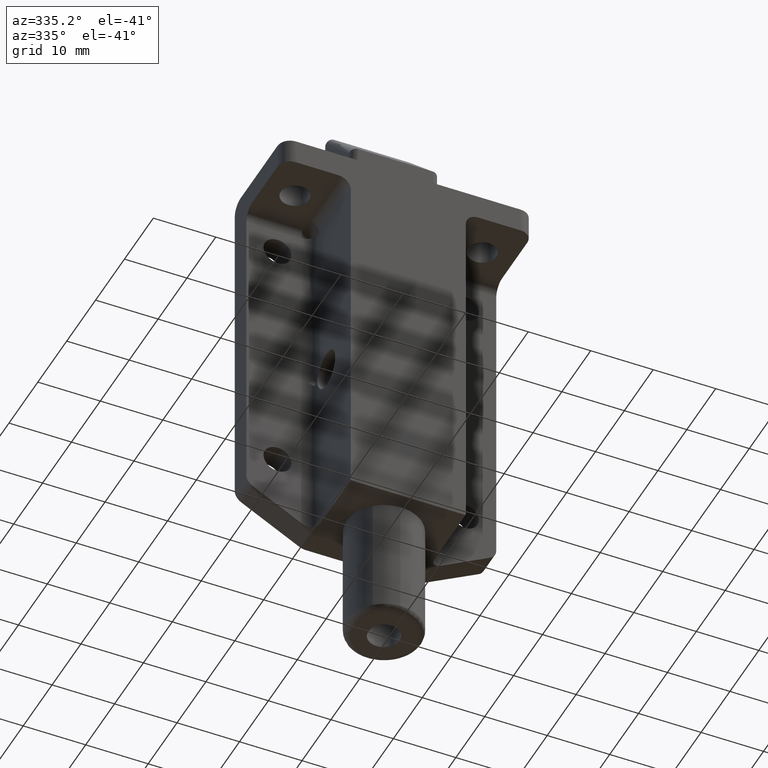
[diagram: clean part render]
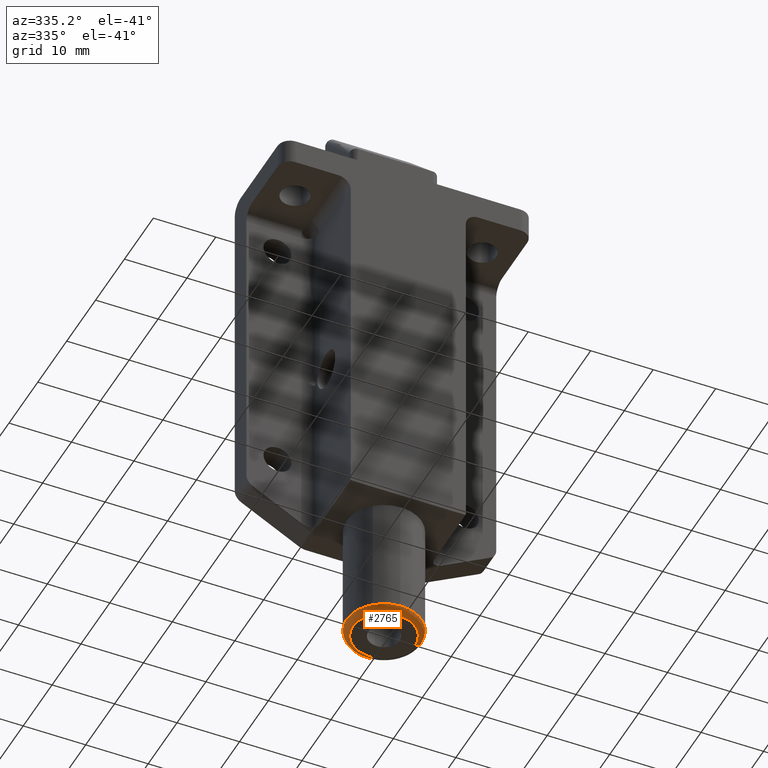
[diagram: same view with one face highlighted and labeled with its STEP entity id]
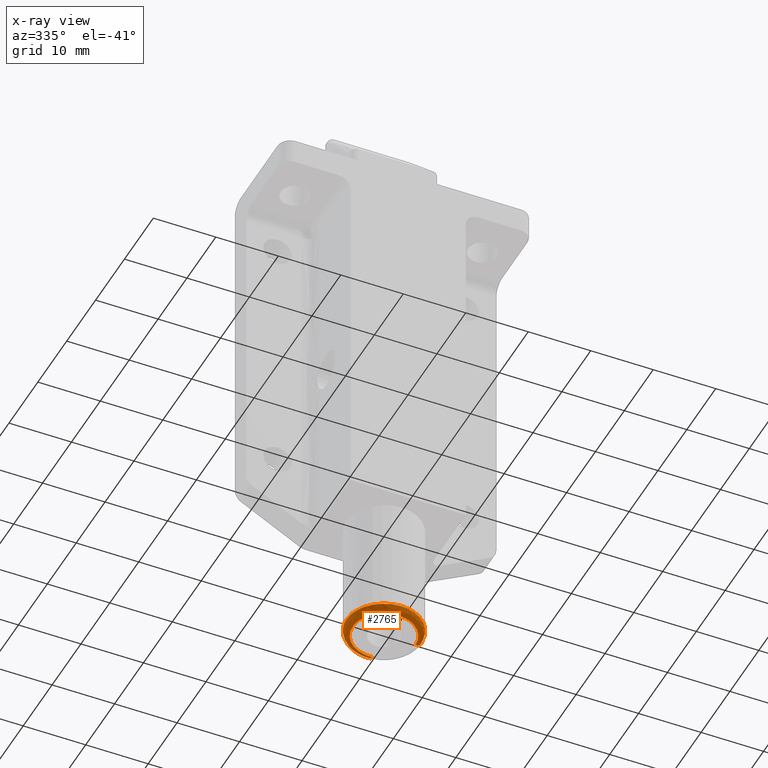
[diagram: x-ray of the same camera — body ghosted, the highlighted face saturated]
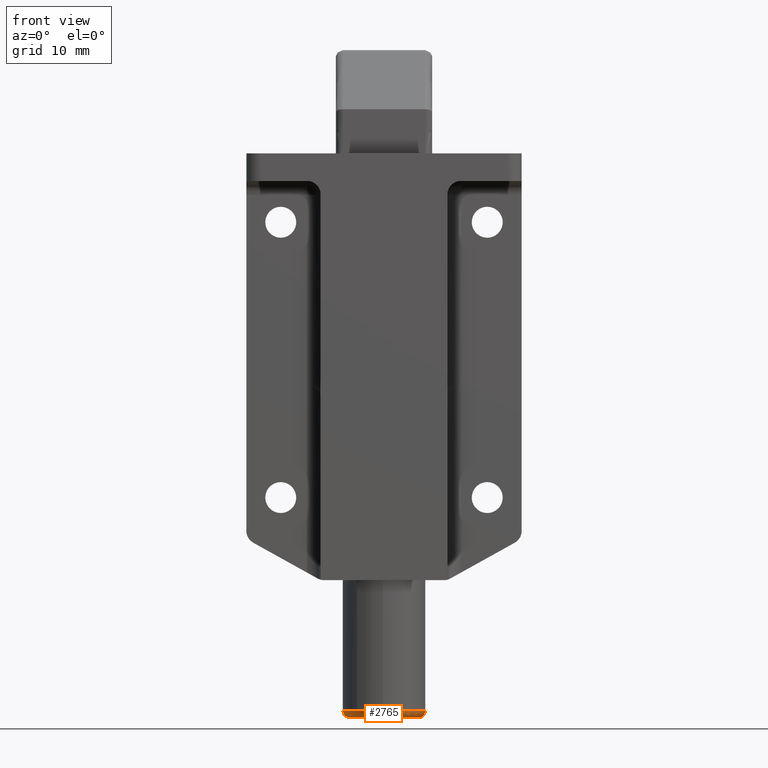
[diagram: same view with one face highlighted and labeled with its STEP entity id]
A machine part, auxiliary view. The second image highlights one B-rep face of the part: STEP entity #2765.
The next image is the same camera in x-ray: the body ghosted, the highlighted face saturated — about 0% of this face is hidden behind the body in this view.
A second angle (front view) of the same face is appended — the face is thin or edge-on in the first view.
In plain terms, the highlighted face is a freeform B-spline surface patch.
Its self-contained STEP definition (entity closure, byte-faithful):
#2535=CARTESIAN_POINT('',(0.157061689912570,14.397943949851630,-80.999999999999986));
#2536=VERTEX_POINT('',#2535);
#2542=CARTESIAN_POINT('',(-5.999526265222896,8.475396239300116,-81.000000000119613));
#2543=VERTEX_POINT('',#2542);
#2544=CARTESIAN_POINT('',(0.157061689912570,14.397943949851637,-80.999999999999986));
#2545=CARTESIAN_POINT('',(0.078544302574375,14.400000000000000,-81.0));
#2546=CARTESIAN_POINT('',(0.0,14.400000000000000,-81.0));
#2547=CARTESIAN_POINT('',(-5.925071579443878,14.399999999999997,-80.999999999999986));
#2548=CARTESIAN_POINT('',(-5.999526265222896,8.475396239300116,-81.000000000119613));
#2556=(BOUNDED_CURVE()B_SPLINE_CURVE(2,(#2544,#2545,#2546,#2547,#2548),.UNSPECIFIED.,.F.,.U.)B_SPLINE_CURVE_WITH_KNOTS((3,2,3),(0.245396693337186,0.250000000000000,0.497784295921728),.UNSPECIFIED.)CURVE()GEOMETRIC_REPRESENTATION_ITEM()RATIONAL_B_SPLINE_CURVE((0.989412390639685,0.994606890777371,1.0,0.709702639984240,0.994854295644012))REPRESENTATION_ITEM(''));
#2557=EDGE_CURVE('',#2536,#2543,#2556,.T.);
#2559=CARTESIAN_POINT('',(-0.418399509452648,2.414605956957406,-81.000000000120068));
#2560=VERTEX_POINT('',#2559);
#2577=CARTESIAN_POINT('',(6.0,8.400000000000000,-81.0));
#2578=VERTEX_POINT('',#2577);
#2579=CARTESIAN_POINT('',(-0.418399509452648,2.414605956957406,-81.000000000120068));
#2580=CARTESIAN_POINT('',(-0.209454695248267,2.399999999999999,-80.999999999999986));
#2581=CARTESIAN_POINT('',(0.0,2.400000000000000,-81.0));
#2582=CARTESIAN_POINT('',(6.0,2.400000000000000,-81.0));
#2583=CARTESIAN_POINT('',(6.0,8.400000000000000,-81.0));
#2591=(BOUNDED_CURVE()B_SPLINE_CURVE(2,(#2579,#2580,#2581,#2582,#2583),.UNSPECIFIED.,.F.,.U.)B_SPLINE_CURVE_WITH_KNOTS((3,2,3),(0.737833686535135,0.750000000000000,1.0),.UNSPECIFIED.)CURVE()GEOMETRIC_REPRESENTATION_ITEM()RATIONAL_B_SPLINE_CURVE((0.972879876387067,0.985746277152729,1.0,0.707106781186548,1.0))REPRESENTATION_ITEM(''));
#2592=EDGE_CURVE('',#2560,#2578,#2591,.T.);
#2594=CARTESIAN_POINT('',(3.921222496979868,12.941366989043470,-81.0));
#2595=VERTEX_POINT('',#2594);
#2596=CARTESIAN_POINT('',(6.0,8.400000000000000,-81.0));
#2597=CARTESIAN_POINT('',(6.000000000000001,11.146456088708490,-81.0));
#2598=CARTESIAN_POINT('',(3.921222496979868,12.941366989043466,-81.0));
#2606=(BOUNDED_CURVE()B_SPLINE_CURVE(2,(#2596,#2597,#2598),.UNSPECIFIED.,.F.,.U.)B_SPLINE_CURVE_WITH_KNOTS((3,3),(0.0,0.136042399187745),.UNSPECIFIED.)CURVE()GEOMETRIC_REPRESENTATION_ITEM()RATIONAL_B_SPLINE_CURVE((1.0,0.840616415227186,0.854696232563469))REPRESENTATION_ITEM(''));
#2607=EDGE_CURVE('',#2578,#2595,#2606,.T.);
#2645=CARTESIAN_POINT('',(3.921222496979868,12.941366989043466,-81.0));
#2646=CARTESIAN_POINT('',(2.299253496398900,14.341848683174126,-81.0));
#2647=CARTESIAN_POINT('',(0.157061689912570,14.397943949851630,-80.999999999999986));
#2655=(BOUNDED_CURVE()B_SPLINE_CURVE(2,(#2645,#2646,#2647),.UNSPECIFIED.,.F.,.U.)B_SPLINE_CURVE_WITH_KNOTS((3,3),(0.136042399187745,0.245396693337186),.UNSPECIFIED.)CURVE()GEOMETRIC_REPRESENTATION_ITEM()RATIONAL_B_SPLINE_CURVE((0.854696232563469,0.866013943040166,0.989412390639686))REPRESENTATION_ITEM(''));
#2656=EDGE_CURVE('',#2595,#2536,#2655,.T.);
#2662=CARTESIAN_POINT('',(-0.343816904757023,3.481539916292115,-81.997579332555546));
#2663=CARTESIAN_POINT('',(-0.203052826109291,3.471700033686998,-81.997579332555546));
#2664=CARTESIAN_POINT('',(-0.061956387392689,3.469926870209152,-81.997579332555546));
#2665=CARTESIAN_POINT('',(4.868116742398160,3.407970482816464,-81.997579332555532));
#2666=CARTESIAN_POINT('',(4.930073129790848,8.338043612607311,-81.997579332555546));
#2667=CARTESIAN_POINT('',(4.992029517183538,13.268116742398156,-81.997579332555532));
#2668=CARTESIAN_POINT('',(0.061956387392689,13.330073129790847,-81.997579332555546));
#2669=CARTESIAN_POINT('',(-4.868116742398157,13.392029517183540,-81.997579332555532));
#2670=CARTESIAN_POINT('',(-4.930073129790848,8.461956387392689,-81.997579332555546));
#2671=CARTESIAN_POINT('',(-0.423806098602525,2.337257446135188,-82.077537694080931));
#2672=CARTESIAN_POINT('',(-0.250293178877901,2.325128309376980,-82.077537694080917));
#2673=CARTESIAN_POINT('',(-0.076370575329792,2.322942618431210,-82.077537694080902));
#2674=CARTESIAN_POINT('',(6.000686806238997,2.246572043101418,-82.077537694080917));
#2675=CARTESIAN_POINT('',(6.077057381568790,8.323629424670207,-82.077537694080902));
#2676=CARTESIAN_POINT('',(6.153427956898583,14.400686806238992,-82.077537694080917));
#2677=CARTESIAN_POINT('',(0.076370575329793,14.477057381568791,-82.077537694080902));
#2678=CARTESIAN_POINT('',(-6.000686806238997,14.553427956898583,-82.077537694080917));
#2679=CARTESIAN_POINT('',(-6.077057381568790,8.476370575329794,-82.077537694080902));
#2680=CARTESIAN_POINT('',(-0.418230380294489,2.417020679288177,-80.930462840280725));
#2681=CARTESIAN_POINT('',(-0.247000247831255,2.405051117038470,-80.930462840280754));
#2682=CARTESIAN_POINT('',(-0.075365821466019,2.402894181688860,-80.930462840280725));
#2683=CARTESIAN_POINT('',(5.921739996845121,2.327528360222842,-80.930462840280768));
#2684=CARTESIAN_POINT('',(5.997105818311140,8.324634178533982,-80.930462840280725));
#2685=CARTESIAN_POINT('',(6.072471639777158,14.321739996845119,-80.930462840280768));
#2686=CARTESIAN_POINT('',(0.075365821466019,14.397105818311140,-80.930462840280725));
#2687=CARTESIAN_POINT('',(-5.921739996845120,14.472471639777162,-80.930462840280768));
#2688=CARTESIAN_POINT('',(-5.997105818311140,8.475365821466021,-80.930462840280725));
#2696=(BOUNDED_SURFACE()B_SPLINE_SURFACE(2,2,((#2662,#2671,#2680),(#2663,#2672,#2681),(#2664,#2673,#2682),(#2665,#2674,#2683),(#2666,#2675,#2684),(#2667,#2676,#2685),(#2668,#2677,#2686),(#2669,#2678,#2687),(#2670,#2679,#2688)),.UNSPECIFIED.,.F.,.F.,.U.)B_SPLINE_SURFACE_WITH_KNOTS((3,2,2,2,3),(3,3),(0.0,0.397484215030721,10.334599067569970,20.271713920109210,30.208828772648449),(0.0,1.822374544844797),.UNSPECIFIED.)GEOMETRIC_REPRESENTATION_ITEM()RATIONAL_B_SPLINE_SURFACE(((0.889999491983505,0.584039659995552,0.889999320495530),(0.899813065124924,0.590479569200536,0.899812891746038),(0.910479991567964,0.597479469929812,0.910479816133740),(0.643806576172378,0.422481784807114,0.643806452121649),(0.910479991567964,0.597479469929812,0.910479816133740),(0.643806576172378,0.422481784807114,0.643806452121649),(0.910479991567964,0.597479469929812,0.910479816133740),(0.643806576172378,0.422481784807114,0.643806452121649),(0.910479991567964,0.597479469929812,0.910479816133740)))REPRESENTATION_ITEM('')SURFACE());
#2697=CARTESIAN_POINT('',(5.0,8.400000000000000,-82.0));
#2698=VERTEX_POINT('',#2697);
#2699=CARTESIAN_POINT('',(-0.348666299670277,3.412171379351716,-81.999999999999915));
#2700=VERTEX_POINT('',#2699);
#2701=CARTESIAN_POINT('',(5.0,8.400000000000000,-82.0));
#2702=CARTESIAN_POINT('',(5.000000000000001,3.399999999999999,-82.0));
#2703=CARTESIAN_POINT('',(0.0,3.400000000000000,-82.0));
#2704=CARTESIAN_POINT('',(-0.174545603560174,3.400000000000000,-82.000000000000014));
#2705=CARTESIAN_POINT('',(-0.348666299670277,3.412171379351716,-81.999999999999915));
#2713=(BOUNDED_CURVE()B_SPLINE_CURVE(2,(#2701,#2702,#2703,#2704,#2705),.UNSPECIFIED.,.F.,.U.)B_SPLINE_CURVE_WITH_KNOTS((3,2,3),(0.0,0.250000000000000,0.262166315126710),.UNSPECIFIED.)CURVE()GEOMETRIC_REPRESENTATION_ITEM()RATIONAL_B_SPLINE_CURVE((1.0,0.707106781186548,1.0,0.985746275205757,0.972879872872122))REPRESENTATION_ITEM(''));
#2714=EDGE_CURVE('',#2698,#2700,#2713,.T.);
#2715=ORIENTED_EDGE('',*,*,#2714,.F.);
#2716=CARTESIAN_POINT('',(-4.999605221033630,8.462830199416942,-82.0));
#2717=VERTEX_POINT('',#2716);
#2718=CARTESIAN_POINT('',(-4.999605221033630,8.462830199416942,-82.0));
#2719=CARTESIAN_POINT('',(-4.937559649536570,13.399999999999999,-82.0));
#2720=CARTESIAN_POINT('',(0.0,13.400000000000000,-82.0));
#2721=CARTESIAN_POINT('',(5.000000000000001,13.399999999999999,-82.0));
#2722=CARTESIAN_POINT('',(5.0,8.400000000000000,-82.0));
#2730=(BOUNDED_CURVE()B_SPLINE_CURVE(2,(#2718,#2719,#2720,#2721,#2722),.UNSPECIFIED.,.F.,.U.)B_SPLINE_CURVE_WITH_KNOTS((3,2,3),(0.502215704078272,0.750000000000000,1.0),.UNSPECIFIED.)CURVE()GEOMETRIC_REPRESENTATION_ITEM()RATIONAL_B_SPLINE_CURVE((0.994854295644012,0.709702639984240,1.0,0.707106781186548,1.0))REPRESENTATION_ITEM(''));
#2731=EDGE_CURVE('',#2717,#2698,#2730,.T.);
#2732=ORIENTED_EDGE('',*,*,#2731,.F.);
#2733=CARTESIAN_POINT('',(-4.999605221033629,8.462830199416944,-81.999999999999986));
#2734=CARTESIAN_POINT('',(-5.999526264983688,8.475396239297107,-81.999999999985434));
#2735=CARTESIAN_POINT('',(-5.999526265222896,8.475396239300116,-81.000000000119613));
#2743=(BOUNDED_CURVE()B_SPLINE_CURVE(2,(#2733,#2734,#2735),.UNSPECIFIED.,.F.,.U.)B_SPLINE_CURVE_WITH_KNOTS((3,3),(-1.725134643266892,-0.274865356963509),.UNSPECIFIED.)CURVE()GEOMETRIC_REPRESENTATION_ITEM()RATIONAL_B_SPLINE_CURVE((0.883342149647735,0.624617224174008,0.883342149565529))REPRESENTATION_ITEM(''));
#2744=EDGE_CURVE('',#2717,#2543,#2743,.T.);
#2745=ORIENTED_EDGE('',*,*,#2744,.T.);
#2746=ORIENTED_EDGE('',*,*,#2557,.F.);
#2747=ORIENTED_EDGE('',*,*,#2656,.F.);
#2748=ORIENTED_EDGE('',*,*,#2607,.F.);
#2749=ORIENTED_EDGE('',*,*,#2592,.F.);
#2750=CARTESIAN_POINT('',(-0.348666299670277,3.412171379351716,-81.999999999999915));
#2751=CARTESIAN_POINT('',(-0.418399509435903,2.414605957196964,-81.999999492503377));
#2752=CARTESIAN_POINT('',(-0.418399509452648,2.414605956957406,-81.000000000120068));
#2760=(BOUNDED_CURVE()B_SPLINE_CURVE(2,(#2750,#2751,#2752),.UNSPECIFIED.,.F.,.U.)B_SPLINE_CURVE_WITH_KNOTS((3,3),(-1.725134122846341,-0.274865356964448),.UNSPECIFIED.)CURVE()GEOMETRIC_REPRESENTATION_ITEM()RATIONAL_B_SPLINE_CURVE((0.863471893860555,0.610567050660310,0.863472075286814))REPRESENTATION_ITEM(''));
#2761=EDGE_CURVE('',#2700,#2560,#2760,.T.);
#2762=ORIENTED_EDGE('',*,*,#2761,.F.);
#2763=EDGE_LOOP('',(#2715,#2732,#2745,#2746,#2747,#2748,#2749,#2762));
#2764=FACE_OUTER_BOUND('',#2763,.T.);
#2765=ADVANCED_FACE('',(#2764),#2696,.T.);